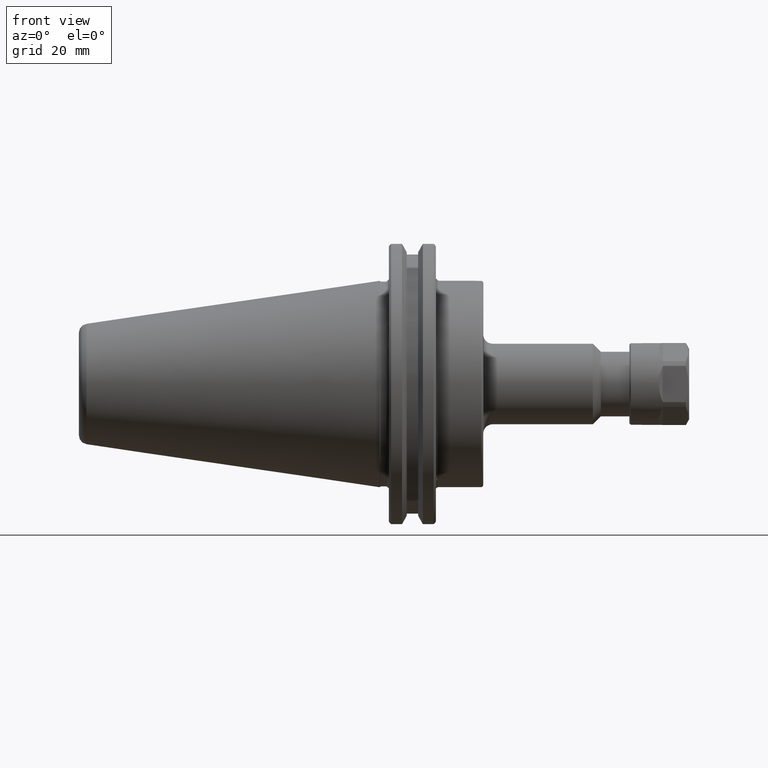
[diagram: clean part render]
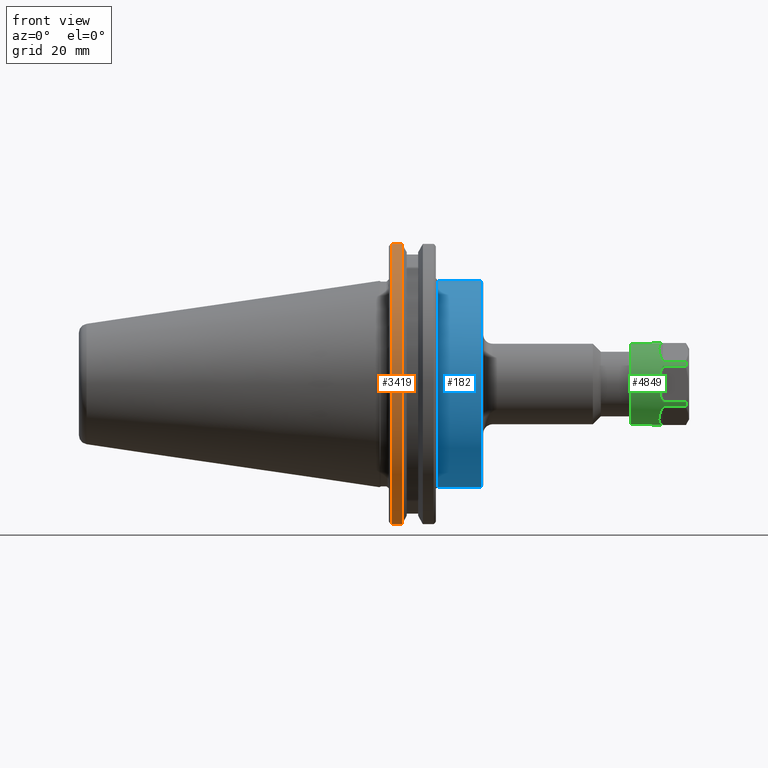
[diagram: same view with three faces highlighted in distinct colors, each labeled with its STEP entity id]
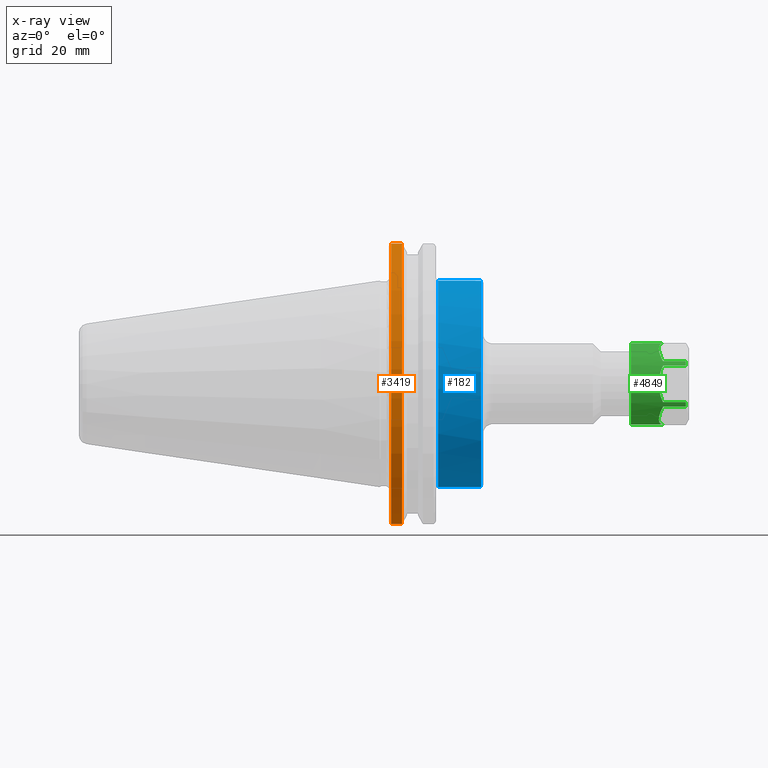
[diagram: x-ray of the same camera — body ghosted, the three highlighted faces saturated]
A machine part, front view with three faces highlighted in distinct colors.
The next image is the same camera in x-ray (body ghosted, the three faces saturated) — at least one of them is partly hidden behind the body in this view.
Their STEP definitions:

[orange] entity #3419 — the highlighted cylindrical surface (partial cylindrical patch) has radius 49.2125 mm, axis along (1, 0, 0).
#2176=CARTESIAN_POINT('',(0.155,-0.527075588370635,1.864429557302648));
#2177=VERTEX_POINT('',#2176);
#2191=CARTESIAN_POINT('',(0.299526127773358,-0.527075588370635,1.864429557302648));
#2192=VERTEX_POINT('',#2191);
#2193=CARTESIAN_POINT('',(0.155,-0.527075588370635,1.864429557302648));
#2194=DIRECTION('',(1.0,0.0,0.0));
#2195=VECTOR('',#2194,0.144526127773358);
#2196=LINE('',#2193,#2195);
#2197=EDGE_CURVE('',#2177,#2192,#2196,.T.);
#3341=CARTESIAN_POINT('',(0.299526127773358,-0.527075588370557,-1.86442955730267));
#3342=VERTEX_POINT('',#3341);
#3356=CARTESIAN_POINT('',(0.155,-0.527075588370557,-1.86442955730267));
#3357=VERTEX_POINT('',#3356);
#3358=CARTESIAN_POINT('',(0.299526127773358,-0.527075588370557,-1.86442955730267));
#3359=DIRECTION('',(-1.0,0.0,0.0));
#3360=VECTOR('',#3359,0.144526127773358);
#3361=LINE('',#3358,#3360);
#3362=EDGE_CURVE('',#3342,#3357,#3361,.T.);
#3388=CARTESIAN_POINT('',(0.155,0.0,0.0));
#3389=DIRECTION('',(-1.0,-1.033781E-013,0.0));
#3390=DIRECTION('',(1.033781E-013,-1.0,0.0));
#3391=AXIS2_PLACEMENT_3D('',#3388,#3389,#3390);
#3392=CIRCLE('',#3391,1.9375);
#3393=EDGE_CURVE('',#3357,#2177,#3392,.T.);
#3402=CARTESIAN_POINT('',(0.4375,0.0,0.0));
#3403=DIRECTION('',(1.0,0.0,0.0));
#3404=DIRECTION('',(-1.033781E-013,1.0,0.0));
#3405=AXIS2_PLACEMENT_3D('',#3402,#3403,#3404);
#3406=CYLINDRICAL_SURFACE('',#3405,1.9375);
#3407=ORIENTED_EDGE('',*,*,#3362,.F.);
#3408=CARTESIAN_POINT('',(0.299526127773358,0.0,0.0));
#3409=DIRECTION('',(-1.0,-1.033781E-013,0.0));
#3410=DIRECTION('',(-1.033781E-013,1.0,0.0));
#3411=AXIS2_PLACEMENT_3D('',#3408,#3409,#3410);
#3412=CIRCLE('',#3411,1.9375);
#3413=EDGE_CURVE('',#3342,#2192,#3412,.T.);
#3414=ORIENTED_EDGE('',*,*,#3413,.T.);
#3415=ORIENTED_EDGE('',*,*,#2197,.F.);
#3416=ORIENTED_EDGE('',*,*,#3393,.F.);
#3417=EDGE_LOOP('',(#3407,#3414,#3415,#3416));
#3418=FACE_OUTER_BOUND('',#3417,.T.);
#3419=ADVANCED_FACE('',(#3418),#3406,.T.);

[blue] entity #182 — the highlighted cylindrical surface (bore or boss wall) has radius 34.925 mm, axis along (1, 0, 0).
#151=CARTESIAN_POINT('',(0.78,1.375,-3.367779E-016));
#152=VERTEX_POINT('',#151);
#153=CARTESIAN_POINT('',(0.78,0.0,0.0));
#154=DIRECTION('',(-1.0,0.0,0.0));
#155=DIRECTION('',(0.0,-1.0,0.0));
#156=AXIS2_PLACEMENT_3D('',#153,#154,#155);
#157=CIRCLE('',#156,1.375);
#158=EDGE_CURVE('',#152,#152,#157,.T.);
#163=CARTESIAN_POINT('',(1.065,0.0,0.0));
#164=DIRECTION('',(1.0,0.0,0.0));
#165=DIRECTION('',(-1.033781E-013,1.0,0.0));
#166=AXIS2_PLACEMENT_3D('',#163,#164,#165);
#167=CYLINDRICAL_SURFACE('',#166,1.375);
#168=CARTESIAN_POINT('',(1.35,1.375,0.0));
#169=VERTEX_POINT('',#168);
#170=CARTESIAN_POINT('',(1.35,0.0,0.0));
#171=DIRECTION('',(1.0,0.0,0.0));
#172=DIRECTION('',(0.0,-1.0,0.0));
#173=AXIS2_PLACEMENT_3D('',#170,#171,#172);
#174=CIRCLE('',#173,1.375);
#175=EDGE_CURVE('',#169,#169,#174,.T.);
#176=ORIENTED_EDGE('',*,*,#175,.F.);
#177=EDGE_LOOP('',(#176));
#178=FACE_OUTER_BOUND('',#177,.T.);
#179=ORIENTED_EDGE('',*,*,#158,.F.);
#180=EDGE_LOOP('',(#179));
#181=FACE_BOUND('',#180,.T.);
#182=ADVANCED_FACE('',(#178,#181),#167,.T.);

[green] entity #4849 — the highlighted cylindrical surface (bore or boss wall) has radius 13.8684 mm, axis along (-1, -0, 0).
#4335=CARTESIAN_POINT('',(0.043,0.49,-0.240865107477193));
#4336=VERTEX_POINT('',#4335);
#4337=CARTESIAN_POINT('',(0.348,0.49,-0.240865107477194));
#4338=VERTEX_POINT('',#4337);
#4339=CARTESIAN_POINT('',(0.043,0.49,-0.240865107477194));
#4340=DIRECTION('',(1.0,0.0,0.0));
#4341=VECTOR('',#4340,0.305);
#4342=LINE('',#4339,#4341);
#4343=EDGE_CURVE('',#4336,#4338,#4342,.T.);
#4345=CARTESIAN_POINT('',(0.043,0.49,0.240865107477193));
#4346=VERTEX_POINT('',#4345);
#4360=CARTESIAN_POINT('',(0.348,0.49,0.240865107477194));
#4361=VERTEX_POINT('',#4360);
#4362=CARTESIAN_POINT('',(0.348,0.49,0.240865107477194));
#4363=DIRECTION('',(-1.0,0.0,0.0));
#4364=VECTOR('',#4363,0.305);
#4365=LINE('',#4362,#4364);
#4366=EDGE_CURVE('',#4361,#4346,#4365,.T.);
#4382=CARTESIAN_POINT('',(-0.142,0.0,0.0));
#4383=DIRECTION('',(0.707106781186548,-0.707106781186547,0.0));
#4384=DIRECTION('',(0.707106781186547,0.707106781186548,0.0));
#4385=AXIS2_PLACEMENT_3D('',#4382,#4383,#4384);
#4386=ELLIPSE('',#4385,0.772160605055709,0.546);
#4387=EDGE_CURVE('',#4338,#4361,#4386,.T.);
#4401=CARTESIAN_POINT('',(0.043,-0.036404698039482,-0.544785001592972));
#4402=VERTEX_POINT('',#4401);
#4403=CARTESIAN_POINT('',(0.043,-0.453595301960519,-0.303919894115778));
#4404=VERTEX_POINT('',#4403);
#4418=CARTESIAN_POINT('',(0.043,-0.49,-0.240865107477193));
#4419=VERTEX_POINT('',#4418);
#4420=CARTESIAN_POINT('',(0.043,0.0,0.0));
#4421=DIRECTION('',(1.0,0.0,0.0));
#4422=DIRECTION('',(0.0,1.0,0.0));
#4423=AXIS2_PLACEMENT_3D('',#4420,#4421,#4422);
#4424=CIRCLE('',#4423,0.546);
#4425=EDGE_CURVE('',#4419,#4404,#4424,.T.);
#4427=CARTESIAN_POINT('',(0.043,-0.49,0.240865107477193));
#4428=VERTEX_POINT('',#4427);
#4442=CARTESIAN_POINT('',(0.043,-0.453595301960519,0.303919894115778));
#4443=VERTEX_POINT('',#4442);
#4444=CARTESIAN_POINT('',(0.043,0.0,0.0));
#4445=DIRECTION('',(1.0,0.0,0.0));
#4446=DIRECTION('',(0.0,1.0,0.0));
#4447=AXIS2_PLACEMENT_3D('',#4444,#4445,#4446);
#4448=CIRCLE('',#4447,0.546);
#4449=EDGE_CURVE('',#4443,#4428,#4448,.T.);
#4451=CARTESIAN_POINT('',(0.043,-0.036404698039481,0.544785001592972));
#4452=VERTEX_POINT('',#4451);
#4466=CARTESIAN_POINT('',(0.043,0.036404698039481,0.544785001592972));
#4467=VERTEX_POINT('',#4466);
#4468=CARTESIAN_POINT('',(0.043,0.0,0.0));
#4469=DIRECTION('',(1.0,0.0,0.0));
#4470=DIRECTION('',(0.0,1.0,0.0));
#4471=AXIS2_PLACEMENT_3D('',#4468,#4469,#4470);
#4472=CIRCLE('',#4471,0.546);
#4473=EDGE_CURVE('',#4467,#4452,#4472,.T.);
#4475=CARTESIAN_POINT('',(0.043,0.453595301960519,0.303919894115778));
#4476=VERTEX_POINT('',#4475);
#4490=CARTESIAN_POINT('',(0.043,0.0,0.0));
#4491=DIRECTION('',(1.0,0.0,0.0));
#4492=DIRECTION('',(0.0,1.0,0.0));
#4493=AXIS2_PLACEMENT_3D('',#4490,#4491,#4492);
#4494=CIRCLE('',#4493,0.546);
#4495=EDGE_CURVE('',#4346,#4476,#4494,.T.);
#4498=CARTESIAN_POINT('',(0.043,0.453595301960518,-0.303919894115779));
#4499=VERTEX_POINT('',#4498);
#4500=CARTESIAN_POINT('',(0.043,0.0,0.0));
#4501=DIRECTION('',(1.0,0.0,0.0));
#4502=DIRECTION('',(0.0,1.0,0.0));
#4503=AXIS2_PLACEMENT_3D('',#4500,#4501,#4502);
#4504=CIRCLE('',#4503,0.546);
#4505=EDGE_CURVE('',#4499,#4336,#4504,.T.);
#4507=CARTESIAN_POINT('',(0.043,0.036404698039481,-0.544785001592972));
#4508=VERTEX_POINT('',#4507);
#4522=CARTESIAN_POINT('',(0.043,0.0,0.0));
#4523=DIRECTION('',(1.0,0.0,0.0));
#4524=DIRECTION('',(0.0,1.0,0.0));
#4525=AXIS2_PLACEMENT_3D('',#4522,#4523,#4524);
#4526=CIRCLE('',#4525,0.546);
#4527=EDGE_CURVE('',#4402,#4508,#4526,.T.);
#4537=CARTESIAN_POINT('',(0.348,0.036404698039481,-0.544785001592972));
#4538=VERTEX_POINT('',#4537);
#4539=CARTESIAN_POINT('',(0.043,0.036404698039481,-0.544785001592972));
#4540=DIRECTION('',(1.0,0.0,0.0));
#4541=VECTOR('',#4540,0.305);
#4542=LINE('',#4539,#4541);
#4543=EDGE_CURVE('',#4508,#4538,#4542,.T.);
#4546=CARTESIAN_POINT('',(0.348,0.453595301960519,-0.303919894115778));
#4547=VERTEX_POINT('',#4546);
#4548=CARTESIAN_POINT('',(0.348,0.453595301960519,-0.303919894115779));
#4549=DIRECTION('',(-1.0,0.0,0.0));
#4550=VECTOR('',#4549,0.305);
#4551=LINE('',#4548,#4550);
#4552=EDGE_CURVE('',#4547,#4499,#4551,.T.);
#4568=CARTESIAN_POINT('',(-0.142,0.0,0.0));
#4569=DIRECTION('',(0.707106781186548,-0.353553390593273,0.612372435695795));
#4570=DIRECTION('',(0.707106781186547,0.353553390593274,-0.612372435695795));
#4571=AXIS2_PLACEMENT_3D('',#4568,#4569,#4570);
#4572=ELLIPSE('',#4571,0.772160605055709,0.546);
#4573=EDGE_CURVE('',#4538,#4547,#4572,.T.);
#4584=CARTESIAN_POINT('',(0.348,0.453595301960519,0.303919894115778));
#4585=VERTEX_POINT('',#4584);
#4586=CARTESIAN_POINT('',(0.043,0.453595301960519,0.303919894115778));
#4587=DIRECTION('',(1.0,0.0,0.0));
#4588=VECTOR('',#4587,0.305);
#4589=LINE('',#4586,#4588);
#4590=EDGE_CURVE('',#4476,#4585,#4589,.T.);
#4593=CARTESIAN_POINT('',(0.348,0.036404698039481,0.544785001592972));
#4594=VERTEX_POINT('',#4593);
#4595=CARTESIAN_POINT('',(0.348,0.036404698039481,0.544785001592972));
#4596=DIRECTION('',(-1.0,0.0,0.0));
#4597=VECTOR('',#4596,0.305);
#4598=LINE('',#4595,#4597);
#4599=EDGE_CURVE('',#4594,#4467,#4598,.T.);
#4615=CARTESIAN_POINT('',(-0.142,0.0,0.0));
#4616=DIRECTION('',(0.707106781186548,-0.353553390593274,-0.612372435695794));
#4617=DIRECTION('',(0.707106781186547,0.353553390593274,0.612372435695795));
#4618=AXIS2_PLACEMENT_3D('',#4615,#4616,#4617);
#4619=ELLIPSE('',#4618,0.772160605055709,0.546);
#4620=EDGE_CURVE('',#4585,#4594,#4619,.T.);
#4631=CARTESIAN_POINT('',(0.348,-0.036404698039481,0.544785001592972));
#4632=VERTEX_POINT('',#4631);
#4633=CARTESIAN_POINT('',(0.043,-0.036404698039481,0.544785001592972));
#4634=DIRECTION('',(1.0,0.0,0.0));
#4635=VECTOR('',#4634,0.305);
#4636=LINE('',#4633,#4635);
#4637=EDGE_CURVE('',#4452,#4632,#4636,.T.);
#4640=CARTESIAN_POINT('',(0.348,-0.453595301960519,0.303919894115778));
#4641=VERTEX_POINT('',#4640);
#4642=CARTESIAN_POINT('',(0.348,-0.453595301960519,0.303919894115778));
#4643=DIRECTION('',(-1.0,0.0,0.0));
#4644=VECTOR('',#4643,0.305);
#4645=LINE('',#4642,#4644);
#4646=EDGE_CURVE('',#4641,#4443,#4645,.T.);
#4662=CARTESIAN_POINT('',(-0.142,0.0,0.0));
#4663=DIRECTION('',(0.707106781186548,0.353553390593273,-0.612372435695794));
#4664=DIRECTION('',(-0.707106781186547,0.353553390593274,-0.612372435695795));
#4665=AXIS2_PLACEMENT_3D('',#4662,#4663,#4664);
#4666=ELLIPSE('',#4665,0.772160605055709,0.546);
#4667=EDGE_CURVE('',#4632,#4641,#4666,.T.);
#4678=CARTESIAN_POINT('',(0.348,-0.49,0.240865107477194));
#4679=VERTEX_POINT('',#4678);
#4680=CARTESIAN_POINT('',(0.043,-0.49,0.240865107477194));
#4681=DIRECTION('',(1.0,0.0,0.0));
#4682=VECTOR('',#4681,0.305);
#4683=LINE('',#4680,#4682);
#4684=EDGE_CURVE('',#4428,#4679,#4683,.T.);
#4687=CARTESIAN_POINT('',(0.348,-0.49,-0.240865107477194));
#4688=VERTEX_POINT('',#4687);
#4689=CARTESIAN_POINT('',(0.348,-0.49,-0.240865107477194));
#4690=DIRECTION('',(-1.0,0.0,0.0));
#4691=VECTOR('',#4690,0.305);
#4692=LINE('',#4689,#4691);
#4693=EDGE_CURVE('',#4688,#4419,#4692,.T.);
#4709=CARTESIAN_POINT('',(-0.142,0.0,0.0));
#4710=DIRECTION('',(0.707106781186548,0.707106781186547,-8.659275E-017));
#4711=DIRECTION('',(-0.707106781186547,0.707106781186548,0.0));
#4712=AXIS2_PLACEMENT_3D('',#4709,#4710,#4711);
#4713=ELLIPSE('',#4712,0.772160605055709,0.546);
#4714=EDGE_CURVE('',#4679,#4688,#4713,.T.);
#4725=CARTESIAN_POINT('',(0.348,-0.453595301960519,-0.303919894115778));
#4726=VERTEX_POINT('',#4725);
#4727=CARTESIAN_POINT('',(0.043,-0.453595301960519,-0.303919894115778));
#4728=DIRECTION('',(1.0,0.0,0.0));
#4729=VECTOR('',#4728,0.305);
#4730=LINE('',#4727,#4729);
#4731=EDGE_CURVE('',#4404,#4726,#4730,.T.);
#4734=CARTESIAN_POINT('',(0.348,-0.036404698039481,-0.544785001592972));
#4735=VERTEX_POINT('',#4734);
#4736=CARTESIAN_POINT('',(0.348,-0.036404698039482,-0.544785001592972));
#4737=DIRECTION('',(-1.0,0.0,0.0));
#4738=VECTOR('',#4737,0.305);
#4739=LINE('',#4736,#4738);
#4740=EDGE_CURVE('',#4735,#4402,#4739,.T.);
#4756=CARTESIAN_POINT('',(-0.142,0.0,0.0));
#4757=DIRECTION('',(0.707106781186548,0.353553390593274,0.612372435695794));
#4758=DIRECTION('',(-0.707106781186547,0.353553390593274,0.612372435695795));
#4759=AXIS2_PLACEMENT_3D('',#4756,#4757,#4758);
#4760=ELLIPSE('',#4759,0.772160605055709,0.546);
#4761=EDGE_CURVE('',#4726,#4735,#4760,.T.);
#4807=CARTESIAN_POINT('',(0.4195,0.0,0.0));
#4808=DIRECTION('',(1.0,0.0,0.0));
#4809=DIRECTION('',(0.0,1.0,0.0));
#4810=AXIS2_PLACEMENT_3D('',#4807,#4808,#4809);
#4811=CYLINDRICAL_SURFACE('',#4810,0.546);
#4812=ORIENTED_EDGE('',*,*,#4740,.T.);
#4813=ORIENTED_EDGE('',*,*,#4527,.T.);
#4814=ORIENTED_EDGE('',*,*,#4543,.T.);
#4815=ORIENTED_EDGE('',*,*,#4573,.T.);
#4816=ORIENTED_EDGE('',*,*,#4552,.T.);
#4817=ORIENTED_EDGE('',*,*,#4505,.T.);
#4818=ORIENTED_EDGE('',*,*,#4343,.T.);
#4819=ORIENTED_EDGE('',*,*,#4387,.T.);
#4820=ORIENTED_EDGE('',*,*,#4366,.T.);
#4821=ORIENTED_EDGE('',*,*,#4495,.T.);
#4822=ORIENTED_EDGE('',*,*,#4590,.T.);
#4823=ORIENTED_EDGE('',*,*,#4620,.T.);
#4824=ORIENTED_EDGE('',*,*,#4599,.T.);
#4825=ORIENTED_EDGE('',*,*,#4473,.T.);
#4826=ORIENTED_EDGE('',*,*,#4637,.T.);
#4827=ORIENTED_EDGE('',*,*,#4667,.T.);
#4828=ORIENTED_EDGE('',*,*,#4646,.T.);
#4829=ORIENTED_EDGE('',*,*,#4449,.T.);
#4830=ORIENTED_EDGE('',*,*,#4684,.T.);
#4831=ORIENTED_EDGE('',*,*,#4714,.T.);
#4832=ORIENTED_EDGE('',*,*,#4693,.T.);
#4833=ORIENTED_EDGE('',*,*,#4425,.T.);
#4834=ORIENTED_EDGE('',*,*,#4731,.T.);
#4835=ORIENTED_EDGE('',*,*,#4761,.T.);
#4836=EDGE_LOOP('',(#4812,#4813,#4814,#4815,#4816,#4817,#4818,#4819,#4820,#4821,#4822,#4823,#4824,#4825,#4826,#4827,#4828,#4829,#4830,#4831,#4832,#4833,#4834,#4835));
#4837=FACE_OUTER_BOUND('',#4836,.T.);
#4838=CARTESIAN_POINT('',(0.776,0.546,6.686351E-017));
#4839=VERTEX_POINT('',#4838);
#4840=CARTESIAN_POINT('',(0.776,0.0,0.0));
#4841=DIRECTION('',(1.0,0.0,0.0));
#4842=DIRECTION('',(0.0,-1.0,0.0));
#4843=AXIS2_PLACEMENT_3D('',#4840,#4841,#4842);
#4844=CIRCLE('',#4843,0.546);
#4845=EDGE_CURVE('',#4839,#4839,#4844,.T.);
#4846=ORIENTED_EDGE('',*,*,#4845,.F.);
#4847=EDGE_LOOP('',(#4846));
#4848=FACE_BOUND('',#4847,.T.);
#4849=ADVANCED_FACE('',(#4837,#4848),#4811,.T.);